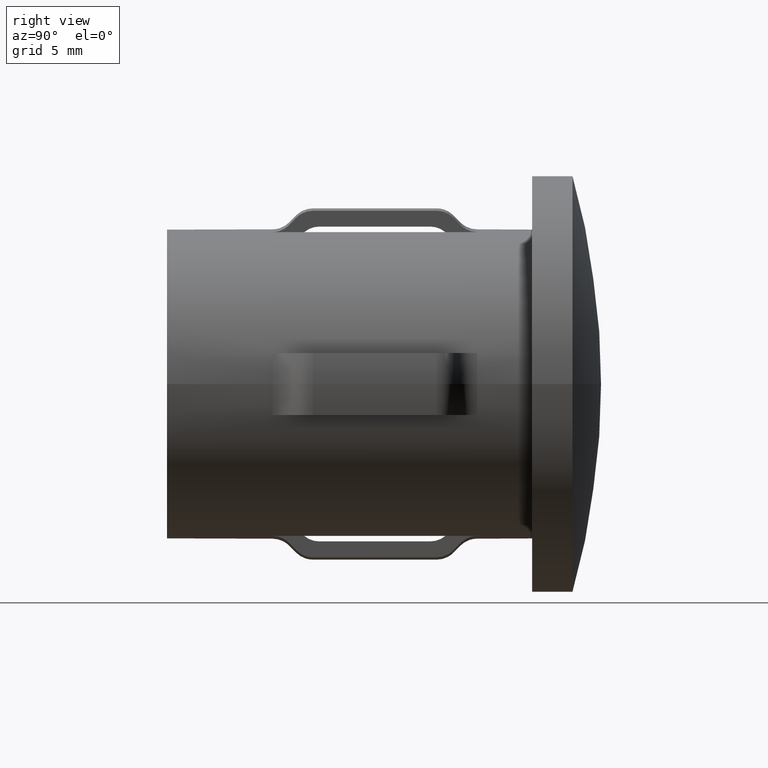
[diagram: clean part render]
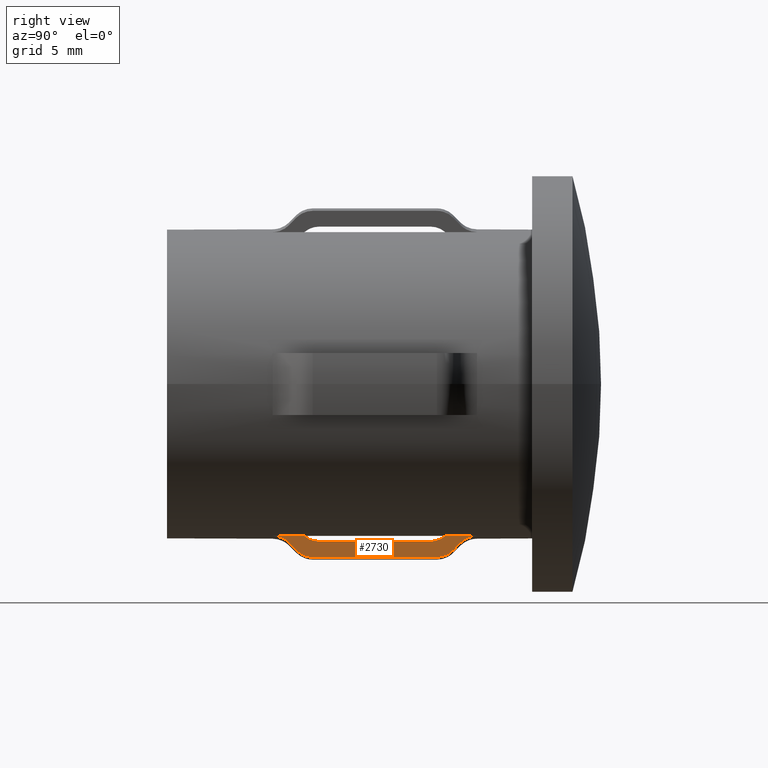
[diagram: same view with one face highlighted and labeled with its STEP entity id]
A machine part, right view. The second image highlights one B-rep face of the part: STEP entity #2730.
In plain terms, the highlighted planar face has unit normal (-1, 0, -0).
Its self-contained STEP definition (entity closure, byte-faithful):
#162 = CARTESIAN_POINT ( 'NONE',  ( 2.000000000000000444, 9.013774795510068216, -11.13233644601907457 ) ) ;
#176 = LINE ( 'NONE', #3807, #2698 ) ;
#260 = VERTEX_POINT ( 'NONE', #6489 ) ;
#267 = CARTESIAN_POINT ( 'NONE',  ( 2.000000000000000444, 9.143074981811839308, -10.00119284299512756 ) ) ;
#400 = EDGE_LOOP ( 'NONE', ( #11912, #13622, #4503, #4318, #4509, #2789, #7552, #959, #9550, #3399, #1917, #9480 ) ) ;
#442 = CARTESIAN_POINT ( 'NONE',  ( 2.000000000000001332, 17.67153429566280920, -10.00111147827699298 ) ) ;
#586 = VECTOR ( 'NONE', #5032, 1000.000000000000000 ) ;
#925 = CARTESIAN_POINT ( 'NONE',  ( 2.000000000000000888, 8.311675462107455559, -10.69015758177714304 ) ) ;
#959 = ORIENTED_EDGE ( 'NONE', *, *, #5189, .T. ) ;
#1186 = EDGE_CURVE ( 'NONE', #7952, #5245, #8487, .T. ) ;
#1256 = CARTESIAN_POINT ( 'NONE',  ( 2.000000000000000888, 7.875378797541277009, -10.24596584266534727 ) ) ;
#1324 = CARTESIAN_POINT ( 'NONE',  ( 2.000000000000000888, 9.407359312880741342, -11.17239902617165725 ) ) ;
#1412 = CARTESIAN_POINT ( 'NONE',  ( 2.000000000000001332, 17.40735931288071114, -11.17239902617165725 ) ) ;
#1553 = PLANE ( 'NONE',  #11463 ) ;
#1609 = VERTEX_POINT ( 'NONE', #10872 ) ;
#1671 = DIRECTION ( 'NONE',  ( -2.449293598294745364E-17, -1.000000000000000000, -0.000000000000000000 ) ) ;
#1917 = ORIENTED_EDGE ( 'NONE', *, *, #10308, .T. ) ;
#2106 = VERTEX_POINT ( 'NONE', #3616 ) ;
#2214 = CARTESIAN_POINT ( 'NONE',  ( 2.000000000000001332, 7.013105362145017452, -9.808108353993114648 ) ) ;
#2308 = CARTESIAN_POINT ( 'NONE',  ( 2.000000000000000888, 7.205497396973607138, -9.847432176059790265 ) ) ;
#2404 = EDGE_CURVE ( 'NONE', #5245, #12078, #2711, .T. ) ;
#2470 = VECTOR ( 'NONE', #4217, 1000.000000000000000 ) ;
#2698 = VECTOR ( 'NONE', #1671, 1000.000000000000000 ) ;
#2711 = LINE ( 'NONE', #7813, #13916 ) ;
#2722 = VERTEX_POINT ( 'NONE', #13503 ) ;
#2730 = ADVANCED_FACE ( 'NONE', ( #4077 ), #1553, .F. ) ;
#2789 = ORIENTED_EDGE ( 'NONE', *, *, #9238, .T. ) ;
#3001 = CARTESIAN_POINT ( 'NONE',  ( 2.000000000000000888, 8.166189049431372027, -10.54214691619052857 ) ) ;
#3042 = CARTESIAN_POINT ( 'NONE',  ( 2.000000000000000888, 8.335024249004787222, -10.71391081099654663 ) ) ;
#3088 = CARTESIAN_POINT ( 'NONE',  ( 2.000000000000000888, 8.346699141100915043, -10.72578693542172701 ) ) ;
#3159 = CARTESIAN_POINT ( 'NONE',  ( 2.000000000000000888, 18.93933982822020212, -10.24596584266531885 ) ) ;
#3174 = CARTESIAN_POINT ( 'NONE',  ( 2.000000000000001332, 19.51614987797371370, -9.876267447560286072 ) ) ;
#3202 = CARTESIAN_POINT ( 'NONE',  ( 2.000000000000000888, 18.79396412491774271, -10.39408524818015600 ) ) ;
#3219 = CARTESIAN_POINT ( 'NONE',  ( 2.000000000000000888, 19.80200291086222464, -9.808065996253889196 ) ) ;
#3392 = EDGE_CURVE ( 'NONE', #12078, #5665, #11164, .T. ) ;
#3399 = ORIENTED_EDGE ( 'NONE', *, *, #3512, .F. ) ;
#3512 = EDGE_CURVE ( 'NONE', #9667, #5317, #176, .T. ) ;
#3534 = CARTESIAN_POINT ( 'NONE',  ( 2.000000000000001776, 18.16125493614904229, -10.96965098034705832 ) ) ;
#3616 = CARTESIAN_POINT ( 'NONE',  ( 2.000000000000000888, 8.346699141100915043, -10.72578693542172701 ) ) ;
#3648 = CARTESIAN_POINT ( 'NONE',  ( 2.000000000000000444, 17.34431757740572522, -10.12300786799558594 ) ) ;
#3807 = CARTESIAN_POINT ( 'NONE',  ( 2.000000000000001332, 20.00000000000000000, -11.17239902617165725 ) ) ;
#3959 = CARTESIAN_POINT ( 'NONE',  ( 2.000000000000000888, 17.95621376472045938, -9.797958971132775474 ) ) ;
#4077 = FACE_OUTER_BOUND ( 'NONE', #400, .T. ) ;
#4217 = DIRECTION ( 'NONE',  ( -2.449293598294745364E-17, -1.000000000000000000, -0.000000000000000000 ) ) ;
#4318 = ORIENTED_EDGE ( 'NONE', *, *, #2404, .T. ) ;
#4338 = CARTESIAN_POINT ( 'NONE',  ( 2.000000000000000888, 18.93933982822020212, -10.24596584266531885 ) ) ;
#4406 = CARTESIAN_POINT ( 'NONE',  ( 2.000000000000000888, 7.299089837474164177, -9.876481105209412803 ) ) ;
#4424 = B_SPLINE_CURVE_WITH_KNOTS ( 'NONE', 3,
 ( #5659, #13135, #6655, #162, #7725, #6745 ),
 .UNSPECIFIED., .F., .F.,
 ( 4, 2, 4 ),
 ( 0.009112881277736996355, 0.009700035206934062848, 0.01028718913613112934 ),
 .UNSPECIFIED. ) ;
#4457 = CARTESIAN_POINT ( 'NONE',  ( 2.000000000000001332, 18.47969437675672566, -10.71391081099648623 ) ) ;
#4503 = ORIENTED_EDGE ( 'NONE', *, *, #1186, .T. ) ;
#4509 = ORIENTED_EDGE ( 'NONE', *, *, #3392, .T. ) ;
#4789 = CARTESIAN_POINT ( 'NONE',  ( 2.000000000000000888, 18.39911417442956676, -10.79587992053209788 ) ) ;
#4895 = DIRECTION ( 'NONE',  ( -1.000000000000000000, 2.449293598294745364E-17, -1.891242924590514834E-16 ) ) ;
#5032 = DIRECTION ( 'NONE',  ( -2.449293598294745364E-17, -1.000000000000000000, -0.000000000000000000 ) ) ;
#5135 = B_SPLINE_CURVE_WITH_KNOTS ( 'NONE', 3,
 ( #4338, #13043, #6430, #3174, #9724, #3219, #8579, #8530 ),
 .UNSPECIFIED., .F., .F.,
 ( 4, 2, 2, 4 ),
 ( 0.009379177387257400453, 0.009967112098151875710, 0.01026107945359911941, 0.01055504680904636138 ),
 .UNSPECIFIED. ) ;
#5189 = EDGE_CURVE ( 'NONE', #2722, #2106, #10164, .T. ) ;
#5204 = CARTESIAN_POINT ( 'NONE',  ( 2.000000000000000888, 16.99314575050780007, -10.15492491355901450 ) ) ;
#5245 = VERTEX_POINT ( 'NONE', #5204 ) ;
#5317 = VERTEX_POINT ( 'NONE', #1324 ) ;
#5550 = CARTESIAN_POINT ( 'NONE',  ( 2.000000000000000444, 6.814718625761425841, -9.797958971132775474 ) ) ;
#5659 = CARTESIAN_POINT ( 'NONE',  ( 2.000000000000000888, 8.346699141100915043, -10.72578693542172701 ) ) ;
#5665 = VERTEX_POINT ( 'NONE', #10330 ) ;
#5934 = EDGE_CURVE ( 'NONE', #12815, #2722, #6854, .T. ) ;
#5989 = CARTESIAN_POINT ( 'NONE',  ( 1.999999999999999112, 20.00000000000000000, 3.782485849181026711E-16 ) ) ;
#6255 = CARTESIAN_POINT ( 'NONE',  ( 2.000000000000000888, 8.020754500843729318, -10.39408524818017376 ) ) ;
#6430 = CARTESIAN_POINT ( 'NONE',  ( 2.000000000000000444, 19.24197609090907335, -9.992409104251896323 ) ) ;
#6489 = CARTESIAN_POINT ( 'NONE',  ( 2.000000000000001332, 18.46801948466106325, -10.72578693542207162 ) ) ;
#6655 = CARTESIAN_POINT ( 'NONE',  ( 2.000000000000001332, 8.652917470930988841, -10.98044236807846197 ) ) ;
#6729 = CARTESIAN_POINT ( 'NONE',  ( 2.000000000000000444, 8.858504861040989553, -9.797958971132775474 ) ) ;
#6745 = CARTESIAN_POINT ( 'NONE',  ( 2.000000000000000888, 9.407359312880741342, -11.17239902617165725 ) ) ;
#6854 = B_SPLINE_CURVE_WITH_KNOTS ( 'NONE', 3,
 ( #5550, #8694, #2214, #2308, #4406, #12081, #10894, #1256 ),
 .UNSPECIFIED., .F., .F.,
 ( 4, 2, 2, 4 ),
 ( 0.009306239216002362702, 0.009600094048116873321, 0.009893948880231383941, 0.01048165854446040518 ),
 .UNSPECIFIED. ) ;
#7070 = CARTESIAN_POINT ( 'NONE',  ( 2.000000000000000888, 18.32401813127482981, -10.85871578851994812 ) ) ;
#7119 = EDGE_CURVE ( 'NONE', #8864, #7952, #12008, .T. ) ;
#7488 = CARTESIAN_POINT ( 'NONE',  ( 2.000000000000000888, 17.95621376472045938, -9.797958971132775474 ) ) ;
#7552 = ORIENTED_EDGE ( 'NONE', *, *, #5934, .T. ) ;
#7700 = DIRECTION ( 'NONE',  ( -2.904862207577519418E-15, -1.000000000000000000, -0.000000000000000000 ) ) ;
#7725 = CARTESIAN_POINT ( 'NONE',  ( 2.000000000000000888, 9.211511224696455002, -11.17239902617163949 ) ) ;
#7813 = CARTESIAN_POINT ( 'NONE',  ( 2.000000000000000888, 25.50000000000000000, -10.15492491355798421 ) ) ;
#7821 = CARTESIAN_POINT ( 'NONE',  ( 2.000000000000000888, 8.991687074598177176, -9.911792377277274468 ) ) ;
#7937 = CARTESIAN_POINT ( 'NONE',  ( 2.000000000000001776, 17.60588764548169394, -11.17239902617162173 ) ) ;
#7938 = CARTESIAN_POINT ( 'NONE',  ( 2.000000000000002665, 20.00000000000002132, -9.797958971132727513 ) ) ;
#7952 = VERTEX_POINT ( 'NONE', #7488 ) ;
#8487 = B_SPLINE_CURVE_WITH_KNOTS ( 'NONE', 3,
 ( #3959, #9053, #442, #3648, #13714, #10463 ),
 .UNSPECIFIED., .F., .F.,
 ( 4, 2, 4 ),
 ( 0.008593185181745850720, 0.009113823359592841677, 0.009634461537439834369 ),
 .UNSPECIFIED. ) ;
#8495 = CARTESIAN_POINT ( 'NONE',  ( 2.000000000000000888, 8.323349688242169364, -10.70203436084278970 ) ) ;
#8508 = CARTESIAN_POINT ( 'NONE',  ( 2.000000000000000888, 20.00000000000000000, -9.797958971132775474 ) ) ;
#8530 = CARTESIAN_POINT ( 'NONE',  ( 2.000000000000002665, 20.00000000000002132, -9.797958971132727513 ) ) ;
#8579 = CARTESIAN_POINT ( 'NONE',  ( 2.000000000000000888, 19.90151168120876335, -9.797958971132720407 ) ) ;
#8610 = CARTESIAN_POINT ( 'NONE',  ( 2.000000000000001332, 18.50304316365399515, -10.69015758177714304 ) ) ;
#8656 = CARTESIAN_POINT ( 'NONE',  ( 2.000000000000001332, 18.46801948466106325, -10.72578693542207162 ) ) ;
#8694 = CARTESIAN_POINT ( 'NONE',  ( 2.000000000000000888, 6.913568839548645428, -9.797958971132752382 ) ) ;
#8864 = VERTEX_POINT ( 'NONE', #7938 ) ;
#9053 = CARTESIAN_POINT ( 'NONE',  ( 2.000000000000000888, 17.82362144408097038, -9.911288184425348646 ) ) ;
#9055 = CARTESIAN_POINT ( 'NONE',  ( 2.000000000000000888, 9.647652851130246177, -10.15492491355798599 ) ) ;
#9238 = EDGE_CURVE ( 'NONE', #5665, #12815, #12137, .T. ) ;
#9480 = ORIENTED_EDGE ( 'NONE', *, *, #13234, .T. ) ;
#9550 = ORIENTED_EDGE ( 'NONE', *, *, #12942, .T. ) ;
#9666 = B_SPLINE_CURVE_WITH_KNOTS ( 'NONE', 3,
 ( #8656, #4457, #14038, #8610, #13987, #3202, #3159 ),
 .UNSPECIFIED., .F., .F.,
 ( 4, 3, 4 ),
 ( 0.002371862837716541723, 0.002421823878811050872, 0.003044448124199297494 ),
 .UNSPECIFIED. ) ;
#9667 = VERTEX_POINT ( 'NONE', #12778 ) ;
#9724 = CARTESIAN_POINT ( 'NONE',  ( 2.000000000000000888, 19.60990471274842761, -9.847255399679971433 ) ) ;
#9917 = CARTESIAN_POINT ( 'NONE',  ( 2.000000000000000888, 17.80301514726397372, -11.13178106805511902 ) ) ;
#10047 = CARTESIAN_POINT ( 'NONE',  ( 2.000000000000001332, 18.07362701906369296, -11.01739615838313213 ) ) ;
#10164 = B_SPLINE_CURVE_WITH_KNOTS ( 'NONE', 3,
 ( #12724, #6255, #3001, #925, #8495, #3042, #3088 ),
 .UNSPECIFIED., .F., .F.,
 ( 4, 3, 4 ),
 ( 0.001799201531315475829, 0.002421825388563272549, 0.002471786398512477913 ),
 .UNSPECIFIED. ) ;
#10308 = EDGE_CURVE ( 'NONE', #9667, #260, #10427, .T. ) ;
#10330 = CARTESIAN_POINT ( 'NONE',  ( 2.000000000000000444, 8.858504861040989553, -9.797958971132775474 ) ) ;
#10427 = B_SPLINE_CURVE_WITH_KNOTS ( 'NONE', 3,
 ( #1412, #7937, #9917, #10047, #3534, #7070, #4789, #12382 ),
 .UNSPECIFIED., .F., .F.,
 ( 4, 2, 2, 4 ),
 ( 0.009188293834329473719, 0.009775615583116088053, 0.01006927645750940042, 0.01036293733190271453 ),
 .UNSPECIFIED. ) ;
#10463 = CARTESIAN_POINT ( 'NONE',  ( 2.000000000000000888, 16.99314575050780007, -10.15492491355901450 ) ) ;
#10789 = CARTESIAN_POINT ( 'NONE',  ( 2.000000000000000444, 6.814718625761425841, -9.797958971132775474 ) ) ;
#10872 = CARTESIAN_POINT ( 'NONE',  ( 2.000000000000000888, 18.93933982822020212, -10.24596584266531885 ) ) ;
#10894 = CARTESIAN_POINT ( 'NONE',  ( 2.000000000000000888, 7.736669574212087674, -10.10463873481845454 ) ) ;
#11132 = CARTESIAN_POINT ( 'NONE',  ( 2.000000000000001332, 9.472323278449078288, -10.12360117273963489 ) ) ;
#11164 = B_SPLINE_CURVE_WITH_KNOTS ( 'NONE', 3,
 ( #13196, #9055, #11132, #267, #7821, #6729 ),
 .UNSPECIFIED., .F., .F.,
 ( 4, 2, 4 ),
 ( 0.008908748489845992949, 0.009429974527297921294, 0.009951200564749847904 ),
 .UNSPECIFIED. ) ;
#11421 = CARTESIAN_POINT ( 'NONE',  ( 1.999999999999955369, 9.821572875253806956, -10.15492491355798421 ) ) ;
#11463 = AXIS2_PLACEMENT_3D ( 'NONE', #5989, #4895, #12487 ) ;
#11912 = ORIENTED_EDGE ( 'NONE', *, *, #12799, .T. ) ;
#12008 = LINE ( 'NONE', #8508, #2470 ) ;
#12078 = VERTEX_POINT ( 'NONE', #11421 ) ;
#12081 = CARTESIAN_POINT ( 'NONE',  ( 2.000000000000000888, 7.571971125716977724, -9.992096499387937314 ) ) ;
#12137 = LINE ( 'NONE', #13492, #586 ) ;
#12382 = CARTESIAN_POINT ( 'NONE',  ( 2.000000000000001332, 18.46801948466106325, -10.72578693542207162 ) ) ;
#12487 = DIRECTION ( 'NONE',  ( -1.891242924590514834E-16, 0.000000000000000000, 1.000000000000000000 ) ) ;
#12724 = CARTESIAN_POINT ( 'NONE',  ( 2.000000000000000888, 7.875378797541277009, -10.24596584266534727 ) ) ;
#12778 = CARTESIAN_POINT ( 'NONE',  ( 2.000000000000001332, 17.40735931288071114, -11.17239902617165725 ) ) ;
#12799 = EDGE_CURVE ( 'NONE', #1609, #8864, #5135, .T. ) ;
#12815 = VERTEX_POINT ( 'NONE', #10789 ) ;
#12942 = EDGE_CURVE ( 'NONE', #2106, #5317, #4424, .T. ) ;
#13043 = CARTESIAN_POINT ( 'NONE',  ( 2.000000000000000444, 19.07795624555879854, -10.10473329235343343 ) ) ;
#13135 = CARTESIAN_POINT ( 'NONE',  ( 2.000000000000000888, 8.485227033998404167, -10.86670254122457457 ) ) ;
#13196 = CARTESIAN_POINT ( 'NONE',  ( 1.999999999999955369, 9.821572875253806956, -10.15492491355798421 ) ) ;
#13234 = EDGE_CURVE ( 'NONE', #260, #1609, #9666, .T. ) ;
#13492 = CARTESIAN_POINT ( 'NONE',  ( 2.000000000000000888, 20.00000000000000000, -9.797958971132775474 ) ) ;
#13503 = CARTESIAN_POINT ( 'NONE',  ( 2.000000000000000888, 7.875378797541277009, -10.24596584266534727 ) ) ;
#13622 = ORIENTED_EDGE ( 'NONE', *, *, #7119, .T. ) ;
#13714 = CARTESIAN_POINT ( 'NONE',  ( 2.000000000000000888, 17.16728518605093612, -10.15492491355798954 ) ) ;
#13916 = VECTOR ( 'NONE', #7700, 1000.000000000000000 ) ;
#13987 = CARTESIAN_POINT ( 'NONE',  ( 2.000000000000001332, 18.64852957633009112, -10.54214691619051969 ) ) ;
#14038 = CARTESIAN_POINT ( 'NONE',  ( 2.000000000000001332, 18.49136893751931154, -10.70203436084276127 ) ) ;